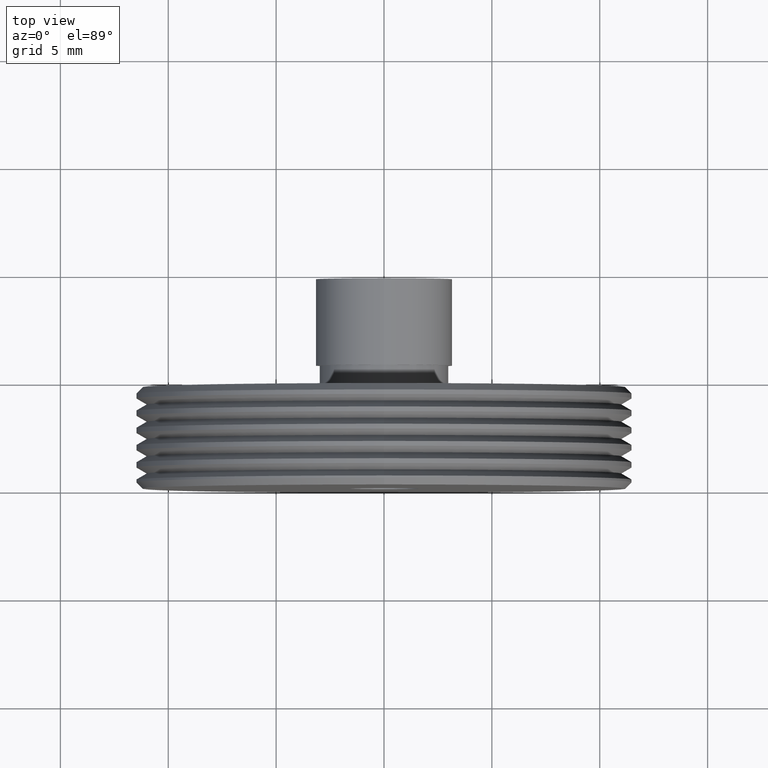
[diagram: clean part render]
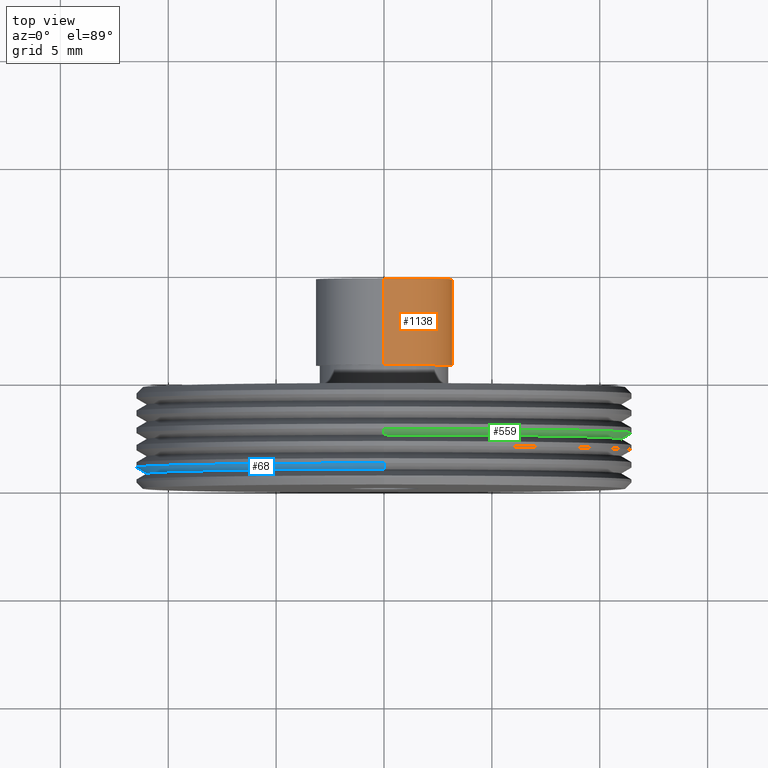
[diagram: same view with three faces highlighted in distinct colors, each labeled with its STEP entity id]
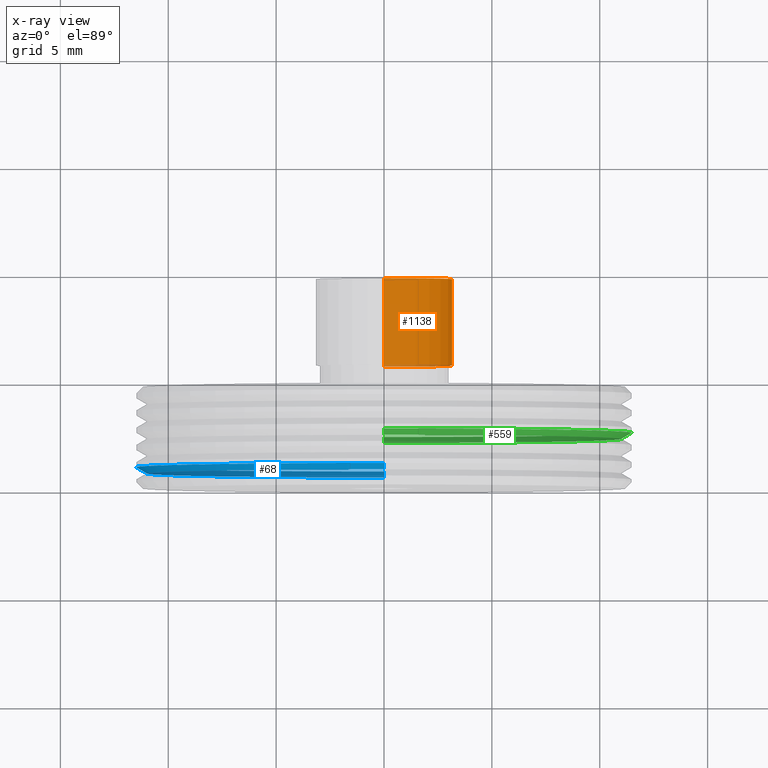
[diagram: x-ray of the same camera — body ghosted, the three highlighted faces saturated]
A machine part, top view with three faces highlighted in distinct colors.
The next image is the same camera in x-ray (body ghosted, the three faces saturated) — at least one of them is partly hidden behind the body in this view.
Their STEP definitions:

[orange] entity #1138 — the highlighted cylindrical surface (partial cylindrical patch) has radius 3.175 mm, axis along (-0, 1, -0).
#5 = CIRCLE ( 'NONE', #653, 3.175000000000004300 ) ;
#29 = CARTESIAN_POINT ( 'NONE',  ( 0.0000000000000000000, 41.06170623995065900, 3.175000000000004300 ) ) ;
#128 = ORIENTED_EDGE ( 'NONE', *, *, #983, .T. ) ;
#151 = LINE ( 'NONE', #29, #1055 ) ;
#162 = AXIS2_PLACEMENT_3D ( 'NONE', #798, #612, #1196 ) ;
#288 = ORIENTED_EDGE ( 'NONE', *, *, #1029, .F. ) ;
#365 = ORIENTED_EDGE ( 'NONE', *, *, #1036, .F. ) ;
#382 = ORIENTED_EDGE ( 'NONE', *, *, #800, .T. ) ;
#419 = DIRECTION ( 'NONE',  ( -0.0000000000000000000, 1.000000000000000000, -0.0000000000000000000 ) ) ;
#480 = CARTESIAN_POINT ( 'NONE',  ( 0.0000000000000000000, 5.699999999999996600, 0.0000000000000000000 ) ) ;
#500 = CARTESIAN_POINT ( 'NONE',  ( 3.888253587292851500E-016, 9.700000000000001100, -3.175000000000004300 ) ) ;
#534 = CARTESIAN_POINT ( 'NONE',  ( 3.888253587292851500E-016, 5.699999999999996600, -3.175000000000004300 ) ) ;
#554 = EDGE_LOOP ( 'NONE', ( #382, #128, #288, #365 ) ) ;
#586 = CARTESIAN_POINT ( 'NONE',  ( 0.0000000000000000000, 5.699999999999996600, 3.175000000000004300 ) ) ;
#595 = VERTEX_POINT ( 'NONE', #534 ) ;
#612 = DIRECTION ( 'NONE',  ( -0.0000000000000000000, 1.000000000000000000, -0.0000000000000000000 ) ) ;
#618 = CARTESIAN_POINT ( 'NONE',  ( 0.0000000000000000000, 41.06170623995065900, 0.0000000000000000000 ) ) ;
#625 = VERTEX_POINT ( 'NONE', #813 ) ;
#653 = AXIS2_PLACEMENT_3D ( 'NONE', #480, #1254, #770 ) ;
#661 = AXIS2_PLACEMENT_3D ( 'NONE', #618, #987, #792 ) ;
#691 = VECTOR ( 'NONE', #980, 1000.000000000000000 ) ;
#770 = DIRECTION ( 'NONE',  ( 0.0000000000000000000, 0.0000000000000000000, 1.000000000000000000 ) ) ;
#780 = CARTESIAN_POINT ( 'NONE',  ( 3.888253587292851500E-016, 41.06170623995065900, -3.175000000000004300 ) ) ;
#792 = DIRECTION ( 'NONE',  ( 0.0000000000000000000, 0.0000000000000000000, 1.000000000000000000 ) ) ;
#798 = CARTESIAN_POINT ( 'NONE',  ( 0.0000000000000000000, 9.700000000000001100, 0.0000000000000000000 ) ) ;
#800 = EDGE_CURVE ( 'NONE', #844, #595, #5, .T. ) ;
#813 = CARTESIAN_POINT ( 'NONE',  ( 0.0000000000000000000, 9.700000000000001100, 3.175000000000004300 ) ) ;
#844 = VERTEX_POINT ( 'NONE', #586 ) ;
#886 = FACE_OUTER_BOUND ( 'NONE', #554, .T. ) ;
#933 = VERTEX_POINT ( 'NONE', #500 ) ;
#980 = DIRECTION ( 'NONE',  ( -0.0000000000000000000, 1.000000000000000000, -0.0000000000000000000 ) ) ;
#981 = CYLINDRICAL_SURFACE ( 'NONE', #661, 3.175000000000004300 ) ;
#983 = EDGE_CURVE ( 'NONE', #595, #933, #1218, .T. ) ;
#987 = DIRECTION ( 'NONE',  ( -0.0000000000000000000, 1.000000000000000000, -0.0000000000000000000 ) ) ;
#1029 = EDGE_CURVE ( 'NONE', #625, #933, #1142, .T. ) ;
#1036 = EDGE_CURVE ( 'NONE', #844, #625, #151, .T. ) ;
#1055 = VECTOR ( 'NONE', #419, 1000.000000000000000 ) ;
#1138 = ADVANCED_FACE ( 'NONE', ( #886 ), #981, .T. ) ;
#1142 = CIRCLE ( 'NONE', #162, 3.175000000000004300 ) ;
#1196 = DIRECTION ( 'NONE',  ( 0.0000000000000000000, 0.0000000000000000000, 1.000000000000000000 ) ) ;
#1218 = LINE ( 'NONE', #780, #691 ) ;
#1254 = DIRECTION ( 'NONE',  ( -0.0000000000000000000, 1.000000000000000000, -0.0000000000000000000 ) ) ;

[blue] entity #68 — the highlighted conical surface has half-angle 60 deg.
#38 = ORIENTED_EDGE ( 'NONE', *, *, #281, .F. ) ;
#57 = VERTEX_POINT ( 'NONE', #145 ) ;
#58 = AXIS2_PLACEMENT_3D ( 'NONE', #147, #823, #326 ) ;
#68 = ADVANCED_FACE ( 'NONE', ( #212 ), #465, .T. ) ;
#133 = CARTESIAN_POINT ( 'NONE',  ( 0.0000000000000000000, 0.7000000000000009500, 11.00000000000000200 ) ) ;
#144 = EDGE_LOOP ( 'NONE', ( #38, #744, #975, #1154 ) ) ;
#145 = CARTESIAN_POINT ( 'NONE',  ( 0.0000000000000000000, 0.9886751345948162600, 11.50000000000000500 ) ) ;
#147 = CARTESIAN_POINT ( 'NONE',  ( 0.0000000000000000000, 0.7000000000000009500, 0.0000000000000000000 ) ) ;
#170 = AXIS2_PLACEMENT_3D ( 'NONE', #1140, #254, #832 ) ;
#188 = VECTOR ( 'NONE', #354, 1000.000000000000000 ) ;
#212 = FACE_OUTER_BOUND ( 'NONE', #144, .T. ) ;
#236 = CARTESIAN_POINT ( 'NONE',  ( 0.0000000000000000000, 1.566025403784440300, 0.0000000000000000000 ) ) ;
#254 = DIRECTION ( 'NONE',  ( 0.0000000000000000000, -1.000000000000000000, 0.0000000000000000000 ) ) ;
#260 = CARTESIAN_POINT ( 'NONE',  ( 0.0000000000000000000, 1.566025403784440300, 12.50000000000000000 ) ) ;
#278 = LINE ( 'NONE', #955, #511 ) ;
#281 = EDGE_CURVE ( 'NONE', #829, #807, #278, .T. ) ;
#326 = DIRECTION ( 'NONE',  ( 0.0000000000000000000, 0.0000000000000000000, 1.000000000000000000 ) ) ;
#332 = DIRECTION ( 'NONE',  ( 0.0000000000000000000, 0.0000000000000000000, 1.000000000000000000 ) ) ;
#354 = DIRECTION ( 'NONE',  ( 0.0000000000000000000, 0.5000000000000004400, 0.8660254037844383700 ) ) ;
#465 = CONICAL_SURFACE ( 'NONE', #570, 12.50000000000000000, 1.047197551196597200 ) ;
#474 = CIRCLE ( 'NONE', #58, 11.00000000000000200 ) ;
#511 = VECTOR ( 'NONE', #1063, 1000.000000000000000 ) ;
#570 = AXIS2_PLACEMENT_3D ( 'NONE', #236, #1017, #332 ) ;
#571 = CIRCLE ( 'NONE', #170, 11.50000000000000500 ) ;
#573 = CARTESIAN_POINT ( 'NONE',  ( 1.377727649040772800E-015, 0.7000000000000009500, -11.00000000000000200 ) ) ;
#603 = VERTEX_POINT ( 'NONE', #133 ) ;
#627 = EDGE_CURVE ( 'NONE', #57, #807, #571, .T. ) ;
#738 = LINE ( 'NONE', #260, #188 ) ;
#744 = ORIENTED_EDGE ( 'NONE', *, *, #1158, .T. ) ;
#746 = EDGE_CURVE ( 'NONE', #603, #57, #738, .T. ) ;
#757 = CARTESIAN_POINT ( 'NONE',  ( 1.408343819019456800E-015, 0.9886751345948162600, -11.50000000000000500 ) ) ;
#807 = VERTEX_POINT ( 'NONE', #757 ) ;
#823 = DIRECTION ( 'NONE',  ( -0.0000000000000000000, 1.000000000000000000, -0.0000000000000000000 ) ) ;
#829 = VERTEX_POINT ( 'NONE', #573 ) ;
#832 = DIRECTION ( 'NONE',  ( 0.0000000000000000000, 0.0000000000000000000, 1.000000000000000000 ) ) ;
#955 = CARTESIAN_POINT ( 'NONE',  ( 1.530808498934191500E-015, 1.566025403784440300, -12.50000000000000000 ) ) ;
#975 = ORIENTED_EDGE ( 'NONE', *, *, #746, .T. ) ;
#1017 = DIRECTION ( 'NONE',  ( -0.0000000000000000000, 1.000000000000000000, -0.0000000000000000000 ) ) ;
#1063 = DIRECTION ( 'NONE',  ( 1.060575238724906500E-016, 0.5000000000000004400, -0.8660254037844383700 ) ) ;
#1140 = CARTESIAN_POINT ( 'NONE',  ( 0.0000000000000000000, 0.9886751345948162600, 0.0000000000000000000 ) ) ;
#1154 = ORIENTED_EDGE ( 'NONE', *, *, #627, .T. ) ;
#1158 = EDGE_CURVE ( 'NONE', #829, #603, #474, .T. ) ;

[green] entity #559 — the highlighted conical surface has half-angle 60 deg.
#16 = AXIS2_PLACEMENT_3D ( 'NONE', #59, #1018, #420 ) ;
#26 = ORIENTED_EDGE ( 'NONE', *, *, #1080, .F. ) ;
#59 = CARTESIAN_POINT ( 'NONE',  ( 0.0000000000000000000, 3.166025403784440900, 0.0000000000000000000 ) ) ;
#64 = LINE ( 'NONE', #522, #533 ) ;
#149 = EDGE_CURVE ( 'NONE', #409, #492, #234, .T. ) ;
#201 = VERTEX_POINT ( 'NONE', #1127 ) ;
#216 = ORIENTED_EDGE ( 'NONE', *, *, #1207, .T. ) ;
#234 = CIRCLE ( 'NONE', #912, 11.00000000000000200 ) ;
#313 = FACE_OUTER_BOUND ( 'NONE', #946, .T. ) ;
#385 = CARTESIAN_POINT ( 'NONE',  ( 1.408343819019456800E-015, 2.588675134594816900, -11.50000000000000500 ) ) ;
#409 = VERTEX_POINT ( 'NONE', #966 ) ;
#420 = DIRECTION ( 'NONE',  ( 0.0000000000000000000, 0.0000000000000000000, 1.000000000000000000 ) ) ;
#432 = ORIENTED_EDGE ( 'NONE', *, *, #660, .T. ) ;
#492 = VERTEX_POINT ( 'NONE', #1210 ) ;
#503 = DIRECTION ( 'NONE',  ( 0.0000000000000000000, 0.5000000000000004400, 0.8660254037844383700 ) ) ;
#514 = LINE ( 'NONE', #1013, #567 ) ;
#522 = CARTESIAN_POINT ( 'NONE',  ( 0.0000000000000000000, 3.166025403784440900, 12.50000000000000000 ) ) ;
#533 = VECTOR ( 'NONE', #503, 1000.000000000000000 ) ;
#559 = ADVANCED_FACE ( 'NONE', ( #313 ), #1202, .T. ) ;
#564 = AXIS2_PLACEMENT_3D ( 'NONE', #741, #1027, #634 ) ;
#567 = VECTOR ( 'NONE', #1030, 1000.000000000000000 ) ;
#634 = DIRECTION ( 'NONE',  ( 0.0000000000000000000, 0.0000000000000000000, 1.000000000000000000 ) ) ;
#643 = DIRECTION ( 'NONE',  ( 0.0000000000000000000, 0.0000000000000000000, 1.000000000000000000 ) ) ;
#660 = EDGE_CURVE ( 'NONE', #893, #201, #862, .T. ) ;
#741 = CARTESIAN_POINT ( 'NONE',  ( 0.0000000000000000000, 2.588675134594816900, 0.0000000000000000000 ) ) ;
#862 = CIRCLE ( 'NONE', #564, 11.50000000000000500 ) ;
#893 = VERTEX_POINT ( 'NONE', #385 ) ;
#912 = AXIS2_PLACEMENT_3D ( 'NONE', #931, #1233, #643 ) ;
#931 = CARTESIAN_POINT ( 'NONE',  ( 0.0000000000000000000, 2.300000000000001600, 0.0000000000000000000 ) ) ;
#946 = EDGE_LOOP ( 'NONE', ( #1209, #216, #432, #26 ) ) ;
#966 = CARTESIAN_POINT ( 'NONE',  ( 0.0000000000000000000, 2.300000000000001600, 11.00000000000000200 ) ) ;
#1013 = CARTESIAN_POINT ( 'NONE',  ( 1.530808498934191500E-015, 3.166025403784440900, -12.50000000000000000 ) ) ;
#1018 = DIRECTION ( 'NONE',  ( -0.0000000000000000000, 1.000000000000000000, -0.0000000000000000000 ) ) ;
#1027 = DIRECTION ( 'NONE',  ( 0.0000000000000000000, -1.000000000000000000, 0.0000000000000000000 ) ) ;
#1030 = DIRECTION ( 'NONE',  ( 1.060575238724906500E-016, 0.5000000000000004400, -0.8660254037844383700 ) ) ;
#1080 = EDGE_CURVE ( 'NONE', #409, #201, #64, .T. ) ;
#1127 = CARTESIAN_POINT ( 'NONE',  ( 0.0000000000000000000, 2.588675134594816900, 11.50000000000000500 ) ) ;
#1202 = CONICAL_SURFACE ( 'NONE', #16, 12.50000000000000000, 1.047197551196597200 ) ;
#1207 = EDGE_CURVE ( 'NONE', #492, #893, #514, .T. ) ;
#1209 = ORIENTED_EDGE ( 'NONE', *, *, #149, .T. ) ;
#1210 = CARTESIAN_POINT ( 'NONE',  ( 1.377727649040772800E-015, 2.300000000000001600, -11.00000000000000200 ) ) ;
#1233 = DIRECTION ( 'NONE',  ( -0.0000000000000000000, 1.000000000000000000, -0.0000000000000000000 ) ) ;